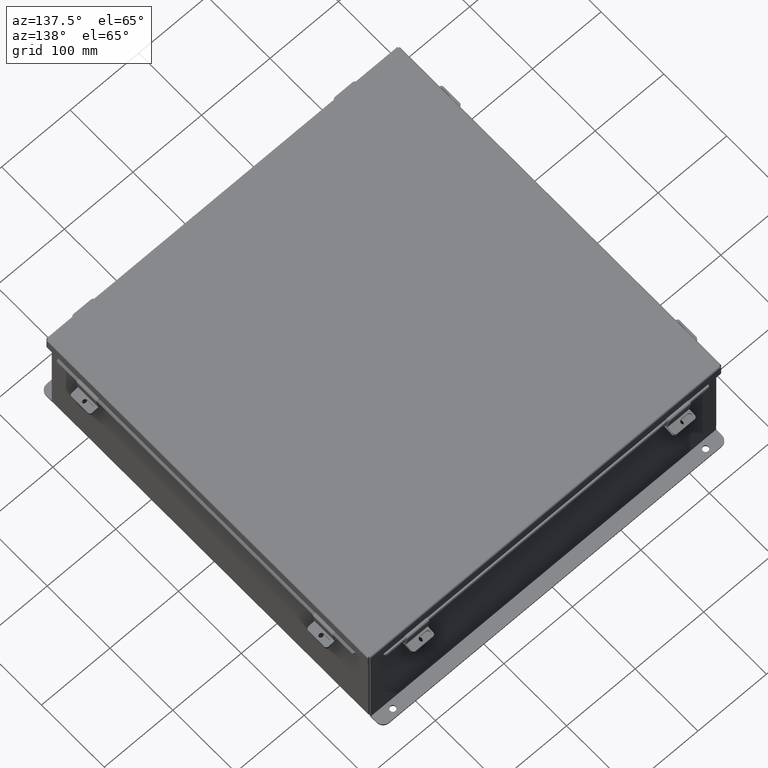
[diagram: clean part render]
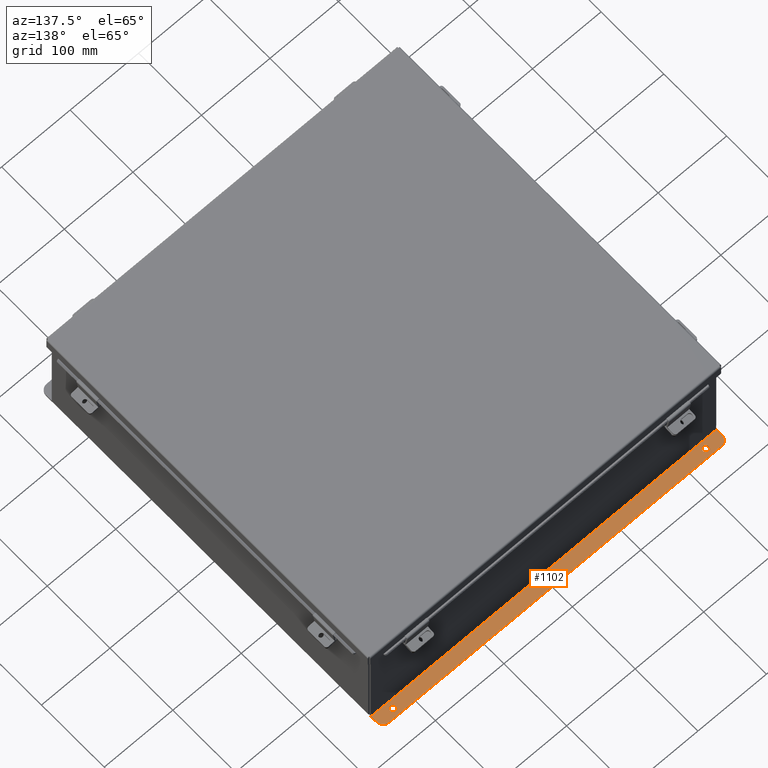
[diagram: same view with one face highlighted and labeled with its STEP entity id]
A machine part, auxiliary view. The second image highlights one B-rep face of the part: STEP entity #1102.
In plain terms, the highlighted planar face has unit normal (0, 0, 1).
Its self-contained STEP definition (entity closure, byte-faithful):
#105 = VECTOR ( 'NONE', #2829, 39.37007874015748100 ) ;
#109 = CARTESIAN_POINT ( 'NONE',  ( -8.987799999999994700, 0.3628000000000001800, -3.112300000000001200 ) ) ;
#157 = CARTESIAN_POINT ( 'NONE',  ( -8.987799999999994700, 0.2067999999999999800, -3.112300000000000700 ) ) ;
#341 = DIRECTION ( 'NONE',  ( -0.0000000000000000000, -3.702694488566362300E-015, -1.000000000000000000 ) ) ;
#446 = CIRCLE ( 'NONE', #5624, 0.1560000000000001700 ) ;
#793 = EDGE_CURVE ( 'NONE', #928, #8920, #6160, .T. ) ;
#869 = DIRECTION ( 'NONE',  ( 0.0000000000000000000, -1.000000000000000000, 3.502369222646487400E-015 ) ) ;
#928 = VERTEX_POINT ( 'NONE', #2229 ) ;
#1102 = ADVANCED_FACE ( 'NONE', ( #9385, #9861, #9610 ), #4292, .T. ) ;
#1159 = CIRCLE ( 'NONE', #6612, 0.1560000000000001700 ) ;
#1170 = AXIS2_PLACEMENT_3D ( 'NONE', #6754, #2208, #7522 ) ;
#1470 = CARTESIAN_POINT ( 'NONE',  ( 8.987800000000001800, 0.3628000000000001800, -3.112300000000001200 ) ) ;
#1476 = EDGE_CURVE ( 'NONE', #2594, #7048, #1159, .T. ) ;
#1636 = ORIENTED_EDGE ( 'NONE', *, *, #9268, .T. ) ;
#1742 = ORIENTED_EDGE ( 'NONE', *, *, #3715, .T. ) ;
#1768 = EDGE_CURVE ( 'NONE', #8044, #4114, #2816, .T. ) ;
#1997 = CARTESIAN_POINT ( 'NONE',  ( 9.925300000000001800, 0.01299999999999996600, -3.112299999999999800 ) ) ;
#2022 = DIRECTION ( 'NONE',  ( 0.0000000000000000000, 3.702694488566362300E-015, 1.000000000000000000 ) ) ;
#2208 = DIRECTION ( 'NONE',  ( 0.0000000000000000000, 3.702694488566362300E-015, 1.000000000000000000 ) ) ;
#2229 = CARTESIAN_POINT ( 'NONE',  ( -9.550299999999998200, 0.7378000000000002300, -3.112300000000003000 ) ) ;
#2246 = DIRECTION ( 'NONE',  ( 0.0000000000000000000, -1.000000000000000000, 3.502369222646487400E-015 ) ) ;
#2316 = LINE ( 'NONE', #7959, #7907 ) ;
#2462 = DIRECTION ( 'NONE',  ( -0.0000000000000000000, -3.702694488566362300E-015, -1.000000000000000000 ) ) ;
#2495 = CARTESIAN_POINT ( 'NONE',  ( 8.987800000000001800, 0.2067999999999999800, -3.112300000000000700 ) ) ;
#2565 = AXIS2_PLACEMENT_3D ( 'NONE', #1470, #6789, #2246 ) ;
#2587 = ORIENTED_EDGE ( 'NONE', *, *, #1476, .T. ) ;
#2594 = VERTEX_POINT ( 'NONE', #2495 ) ;
#2723 = EDGE_CURVE ( 'NONE', #4114, #6318, #2316, .T. ) ;
#2816 = LINE ( 'NONE', #4417, #4839 ) ;
#2829 = DIRECTION ( 'NONE',  ( 1.000000000000000000, -0.0000000000000000000, -0.0000000000000000000 ) ) ;
#3459 = ORIENTED_EDGE ( 'NONE', *, *, #6629, .T. ) ;
#3715 = EDGE_CURVE ( 'NONE', #8044, #8920, #9326, .T. ) ;
#3843 = CARTESIAN_POINT ( 'NONE',  ( -9.550299999999998200, 0.3628000000000002900, -3.112300000000001200 ) ) ;
#3959 = VERTEX_POINT ( 'NONE', #4106 ) ;
#4106 = CARTESIAN_POINT ( 'NONE',  ( -9.925299999999998200, 0.3628000000000002900, -3.112300000000001200 ) ) ;
#4114 = VERTEX_POINT ( 'NONE', #1997 ) ;
#4160 = DIRECTION ( 'NONE',  ( -1.000000000000000000, 0.0000000000000000000, 0.0000000000000000000 ) ) ;
#4292 = PLANE ( 'NONE',  #8365 ) ;
#4417 = CARTESIAN_POINT ( 'NONE',  ( 9.925300000000001800, 1.577762228432578300E-017, -3.112299999999999800 ) ) ;
#4617 = VECTOR ( 'NONE', #9443, 39.37007874015748100 ) ;
#4622 = DIRECTION ( 'NONE',  ( 0.0000000000000000000, -1.000000000000000000, 4.370956789862820400E-015 ) ) ;
#4839 = VECTOR ( 'NONE', #8979, 39.37007874015748100 ) ;
#4879 = CARTESIAN_POINT ( 'NONE',  ( -8.987799999999994700, 0.3628000000000001800, -3.112300000000001200 ) ) ;
#4893 = ORIENTED_EDGE ( 'NONE', *, *, #9072, .T. ) ;
#5079 = CARTESIAN_POINT ( 'NONE',  ( 9.925300000000001800, 0.7378000000000002300, -3.112300000000003000 ) ) ;
#5270 = ORIENTED_EDGE ( 'NONE', *, *, #8733, .F. ) ;
#5416 = DIRECTION ( 'NONE',  ( -0.0000000000000000000, -3.702694488566362300E-015, -1.000000000000000000 ) ) ;
#5477 = ORIENTED_EDGE ( 'NONE', *, *, #7871, .T. ) ;
#5624 = AXIS2_PLACEMENT_3D ( 'NONE', #109, #5416, #869 ) ;
#5640 = DIRECTION ( 'NONE',  ( 0.0000000000000000000, -1.000000000000000000, 3.502369222646487400E-015 ) ) ;
#5745 = ORIENTED_EDGE ( 'NONE', *, *, #1768, .F. ) ;
#5749 = CARTESIAN_POINT ( 'NONE',  ( 8.987800000000001800, 0.5188000000000003700, -3.112300000000001600 ) ) ;
#5907 = CIRCLE ( 'NONE', #2565, 0.1560000000000001700 ) ;
#5950 = AXIS2_PLACEMENT_3D ( 'NONE', #4879, #341, #5640 ) ;
#6011 = EDGE_LOOP ( 'NONE', ( #5745, #1742, #7251, #5477, #5270, #7395 ) ) ;
#6100 = EDGE_LOOP ( 'NONE', ( #3459, #2587 ) ) ;
#6160 = LINE ( 'NONE', #5079, #105 ) ;
#6318 = VERTEX_POINT ( 'NONE', #7870 ) ;
#6570 = CARTESIAN_POINT ( 'NONE',  ( 0.0000000000000000000, -1.083149218740318000E-014, -3.112299999999999800 ) ) ;
#6612 = AXIS2_PLACEMENT_3D ( 'NONE', #7003, #2462, #7780 ) ;
#6629 = EDGE_CURVE ( 'NONE', #7048, #2594, #5907, .T. ) ;
#6754 = CARTESIAN_POINT ( 'NONE',  ( 9.550300000000001800, 0.3628000000000002300, -3.112300000000001200 ) ) ;
#6789 = DIRECTION ( 'NONE',  ( -0.0000000000000000000, -3.702694488566362300E-015, -1.000000000000000000 ) ) ;
#6811 = CARTESIAN_POINT ( 'NONE',  ( -8.987799999999994700, 0.5188000000000003700, -3.112300000000001600 ) ) ;
#6850 = CIRCLE ( 'NONE', #5950, 0.1560000000000001700 ) ;
#6955 = CIRCLE ( 'NONE', #9455, 0.3750000000000000600 ) ;
#7003 = CARTESIAN_POINT ( 'NONE',  ( 8.987800000000001800, 0.3628000000000001800, -3.112300000000001200 ) ) ;
#7048 = VERTEX_POINT ( 'NONE', #5749 ) ;
#7251 = ORIENTED_EDGE ( 'NONE', *, *, #793, .F. ) ;
#7334 = DIRECTION ( 'NONE',  ( 0.0000000000000000000, -1.000000000000000000, 3.702694488566362300E-015 ) ) ;
#7395 = ORIENTED_EDGE ( 'NONE', *, *, #2723, .F. ) ;
#7522 = DIRECTION ( 'NONE',  ( 0.0000000000000000000, -1.000000000000000000, 4.370956789862820400E-015 ) ) ;
#7780 = DIRECTION ( 'NONE',  ( 0.0000000000000000000, -1.000000000000000000, 3.502369222646487400E-015 ) ) ;
#7870 = CARTESIAN_POINT ( 'NONE',  ( -9.925299999999996500, 0.01299999999999996600, -3.112299999999999800 ) ) ;
#7871 = EDGE_CURVE ( 'NONE', #928, #3959, #6955, .T. ) ;
#7907 = VECTOR ( 'NONE', #4160, 39.37007874015748100 ) ;
#7917 = CARTESIAN_POINT ( 'NONE',  ( -9.925299999999998200, 0.7378000000000002300, -3.112300000000003000 ) ) ;
#7959 = CARTESIAN_POINT ( 'NONE',  ( 9.925300000000001800, 0.01300000000000010700, -3.112299999999999800 ) ) ;
#8044 = VERTEX_POINT ( 'NONE', #8639 ) ;
#8365 = AXIS2_PLACEMENT_3D ( 'NONE', #6570, #2022, #7334 ) ;
#8433 = VERTEX_POINT ( 'NONE', #6811 ) ;
#8639 = CARTESIAN_POINT ( 'NONE',  ( 9.925300000000001800, 0.3628000000000002300, -3.112300000000001200 ) ) ;
#8673 = LINE ( 'NONE', #7917, #4617 ) ;
#8733 = EDGE_CURVE ( 'NONE', #6318, #3959, #8673, .T. ) ;
#8848 = CARTESIAN_POINT ( 'NONE',  ( 9.550300000000001800, 0.7378000000000002300, -3.112300000000003000 ) ) ;
#8920 = VERTEX_POINT ( 'NONE', #8848 ) ;
#8979 = DIRECTION ( 'NONE',  ( -0.0000000000000000000, -1.000000000000000000, 3.702694488566362300E-015 ) ) ;
#9072 = EDGE_CURVE ( 'NONE', #8433, #9764, #446, .T. ) ;
#9179 = DIRECTION ( 'NONE',  ( 0.0000000000000000000, 3.702694488566362300E-015, 1.000000000000000000 ) ) ;
#9268 = EDGE_CURVE ( 'NONE', #9764, #8433, #6850, .T. ) ;
#9326 = CIRCLE ( 'NONE', #1170, 0.3750000000000000600 ) ;
#9349 = EDGE_LOOP ( 'NONE', ( #4893, #1636 ) ) ;
#9385 = FACE_BOUND ( 'NONE', #9349, .T. ) ;
#9443 = DIRECTION ( 'NONE',  ( -0.0000000000000000000, 1.000000000000000000, -3.702694488566362300E-015 ) ) ;
#9455 = AXIS2_PLACEMENT_3D ( 'NONE', #3843, #9179, #4622 ) ;
#9610 = FACE_OUTER_BOUND ( 'NONE', #6011, .T. ) ;
#9764 = VERTEX_POINT ( 'NONE', #157 ) ;
#9861 = FACE_BOUND ( 'NONE', #6100, .T. ) ;